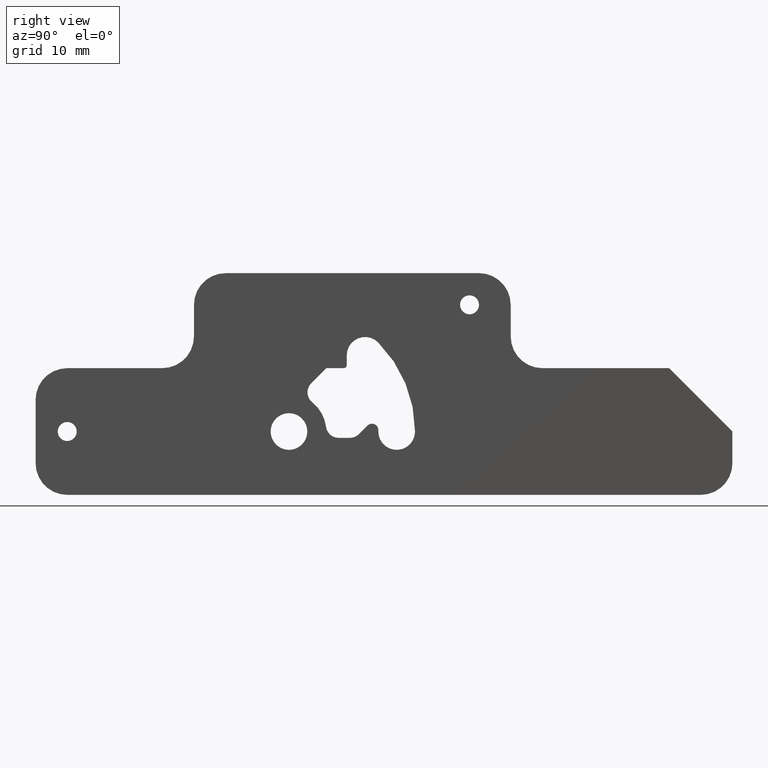
[diagram: clean part render]
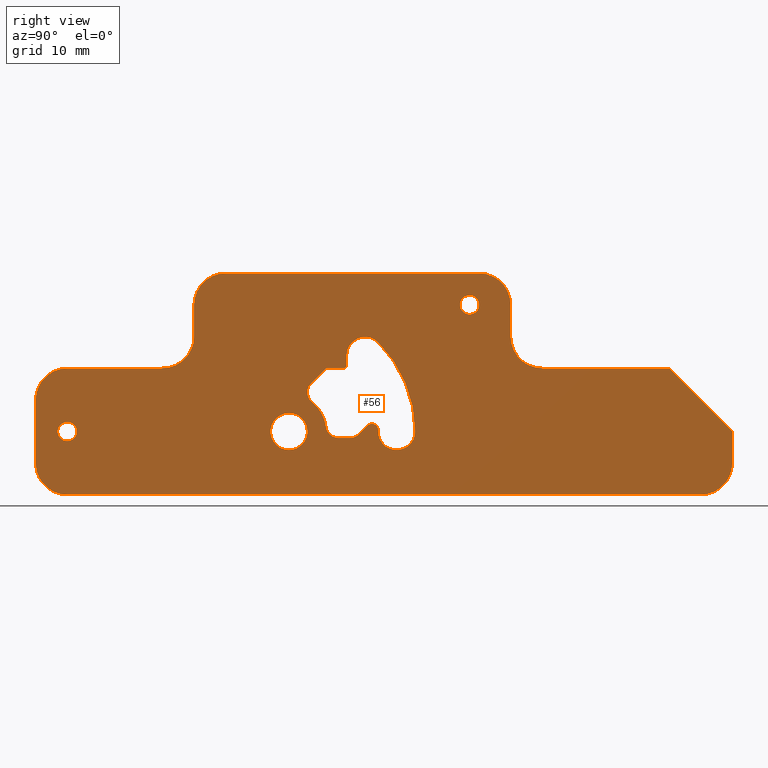
[diagram: same view with one face highlighted and labeled with its STEP entity id]
A machine part, right view. The second image highlights one B-rep face of the part: STEP entity #56.
In plain terms, the highlighted planar face has unit normal (1, 0, 0).
Its self-contained STEP definition (entity closure, byte-faithful):
#56=ADVANCED_FACE('',(#239,#240,#241,#242,#243),#238,.T.);
#238=PLANE('',#549);
#239=FACE_OUTER_BOUND('',#550,.T.);
#240=FACE_BOUND('',#551,.T.);
#241=FACE_BOUND('',#552,.T.);
#242=FACE_BOUND('',#553,.T.);
#243=FACE_BOUND('',#554,.T.);
#546=CARTESIAN_POINT('',(0.00000000000E+00,-5.00000000000E+01,-1.35000000000E+01));
#547=DIRECTION('',(1.00000000000E+00,0.00000000000E+00,0.00000000000E+00));
#548=DIRECTION('',(0.00000000000E+00,1.00000000000E+00,0.00000000000E+00));
#549=AXIS2_PLACEMENT_3D('',#546,#547,#548);
#550=EDGE_LOOP('',(#728,#729,#730,#731,#732,#733,#734,#735,#736,#737,#738,#739,#740,#741,#742,#743));
#551=EDGE_LOOP('',(#744,#745,#746));
#552=EDGE_LOOP('',(#747,#748,#749,#750,#751,#752,#753,#754,#755,#756,#757,#758,#759,#760));
#553=EDGE_LOOP('',(#761,#762,#763));
#554=EDGE_LOOP('',(#764,#765,#766));
#728=ORIENTED_EDGE('',*,*,#896,.F.);
#729=ORIENTED_EDGE('',*,*,#932,.T.);
#730=ORIENTED_EDGE('',*,*,#929,.F.);
#731=ORIENTED_EDGE('',*,*,#926,.T.);
#732=ORIENTED_EDGE('',*,*,#923,.F.);
#733=ORIENTED_EDGE('',*,*,#920,.T.);
#734=ORIENTED_EDGE('',*,*,#917,.F.);
#735=ORIENTED_EDGE('',*,*,#914,.F.);
#736=ORIENTED_EDGE('',*,*,#911,.F.);
#737=ORIENTED_EDGE('',*,*,#908,.F.);
#738=ORIENTED_EDGE('',*,*,#905,.F.);
#739=ORIENTED_EDGE('',*,*,#890,.T.);
#740=ORIENTED_EDGE('',*,*,#886,.F.);
#741=ORIENTED_EDGE('',*,*,#893,.T.);
#742=ORIENTED_EDGE('',*,*,#903,.F.);
#743=ORIENTED_EDGE('',*,*,#900,.F.);
#744=ORIENTED_EDGE('',*,*,#934,.F.);
#745=ORIENTED_EDGE('',*,*,#935,.F.);
#746=ORIENTED_EDGE('',*,*,#936,.F.);
#747=ORIENTED_EDGE('',*,*,#937,.F.);
#748=ORIENTED_EDGE('',*,*,#938,.F.);
#749=ORIENTED_EDGE('',*,*,#939,.T.);
#750=ORIENTED_EDGE('',*,*,#940,.F.);
#751=ORIENTED_EDGE('',*,*,#941,.F.);
#752=ORIENTED_EDGE('',*,*,#942,.F.);
#753=ORIENTED_EDGE('',*,*,#943,.F.);
#754=ORIENTED_EDGE('',*,*,#944,.T.);
#755=ORIENTED_EDGE('',*,*,#945,.F.);
#756=ORIENTED_EDGE('',*,*,#946,.F.);
#757=ORIENTED_EDGE('',*,*,#947,.F.);
#758=ORIENTED_EDGE('',*,*,#948,.T.);
#759=ORIENTED_EDGE('',*,*,#949,.F.);
#760=ORIENTED_EDGE('',*,*,#950,.F.);
#761=ORIENTED_EDGE('',*,*,#951,.F.);
#762=ORIENTED_EDGE('',*,*,#952,.F.);
#763=ORIENTED_EDGE('',*,*,#953,.F.);
#764=ORIENTED_EDGE('',*,*,#954,.F.);
#765=ORIENTED_EDGE('',*,*,#955,.F.);
#766=ORIENTED_EDGE('',*,*,#956,.F.);
#886=EDGE_CURVE('',#997,#998,#999,.T.);
#890=EDGE_CURVE('',#1025,#998,#1026,.T.);
#893=EDGE_CURVE('',#997,#1045,#1046,.T.);
#896=EDGE_CURVE('',#1065,#1066,#1067,.T.);
#900=EDGE_CURVE('',#1066,#1093,#1094,.T.);
#903=EDGE_CURVE('',#1093,#1045,#1113,.T.);
#905=EDGE_CURVE('',#1025,#1125,#1126,.T.);
#908=EDGE_CURVE('',#1125,#1145,#1146,.T.);
#911=EDGE_CURVE('',#1145,#1165,#1166,.T.);
#914=EDGE_CURVE('',#1165,#1185,#1186,.T.);
#917=EDGE_CURVE('',#1185,#1205,#1206,.T.);
#920=EDGE_CURVE('',#1225,#1205,#1226,.T.);
#923=EDGE_CURVE('',#1225,#1245,#1246,.T.);
#926=EDGE_CURVE('',#1265,#1245,#1266,.T.);
#929=EDGE_CURVE('',#1265,#1285,#1286,.T.);
#932=EDGE_CURVE('',#1065,#1285,#1305,.T.);
#934=EDGE_CURVE('',#1317,#1318,#1319,.T.);
#935=EDGE_CURVE('',#1325,#1317,#1326,.T.);
#936=EDGE_CURVE('',#1318,#1325,#1332,.T.);
#937=EDGE_CURVE('',#1338,#1339,#1340,.T.);
#938=EDGE_CURVE('',#1346,#1338,#1347,.T.);
#939=EDGE_CURVE('',#1346,#1353,#1354,.T.);
#940=EDGE_CURVE('',#1360,#1353,#1361,.T.);
#941=EDGE_CURVE('',#1367,#1360,#1368,.T.);
#942=EDGE_CURVE('',#1374,#1367,#1375,.T.);
#943=EDGE_CURVE('',#1381,#1374,#1382,.T.);
#944=EDGE_CURVE('',#1381,#1388,#1389,.T.);
#945=EDGE_CURVE('',#1395,#1388,#1396,.T.);
#946=EDGE_CURVE('',#1402,#1395,#1403,.T.);
#947=EDGE_CURVE('',#1409,#1402,#1410,.T.);
#948=EDGE_CURVE('',#1409,#1416,#1417,.T.);
#949=EDGE_CURVE('',#1423,#1416,#1424,.T.);
#950=EDGE_CURVE('',#1339,#1423,#1430,.T.);
#951=EDGE_CURVE('',#1436,#1437,#1438,.T.);
#952=EDGE_CURVE('',#1444,#1436,#1445,.T.);
#953=EDGE_CURVE('',#1437,#1444,#1451,.T.);
#954=EDGE_CURVE('',#1457,#1458,#1459,.T.);
#955=EDGE_CURVE('',#1465,#1457,#1466,.T.);
#956=EDGE_CURVE('',#1458,#1465,#1472,.T.);
#997=VERTEX_POINT('',#1738);
#998=VERTEX_POINT('',#1739);
#999=LINE('',#1740,#1741);
#1025=VERTEX_POINT('',#1754);
#1026=CIRCLE('',#1758,5.00000000000E+00);
#1045=VERTEX_POINT('',#1767);
#1046=CIRCLE('',#1771,5.00000000000E+00);
#1065=VERTEX_POINT('',#1780);
#1066=VERTEX_POINT('',#1781);
#1067=LINE('',#1782,#1783);
#1093=VERTEX_POINT('',#1796);
#1094=CIRCLE('',#1800,5.00000000000E+00);
#1113=LINE('',#1809,#1810);
#1125=VERTEX_POINT('',#1815);
#1126=LINE('',#1816,#1817);
#1145=VERTEX_POINT('',#1826);
#1146=CIRCLE('',#1830,5.00000000000E+00);
#1165=VERTEX_POINT('',#1839);
#1166=LINE('',#1840,#1841);
#1185=VERTEX_POINT('',#1850);
#1186=LINE('',#1851,#1852);
#1205=VERTEX_POINT('',#1861);
#1206=LINE('',#1862,#1863);
#1225=VERTEX_POINT('',#1872);
#1226=CIRCLE('',#1876,5.00000000000E+00);
#1245=VERTEX_POINT('',#1885);
#1246=LINE('',#1886,#1887);
#1265=VERTEX_POINT('',#1896);
#1266=CIRCLE('',#1900,5.00000000000E+00);
#1285=VERTEX_POINT('',#1909);
#1286=LINE('',#1910,#1911);
#1305=CIRCLE('',#1923,5.00000000000E+00);
#1317=VERTEX_POINT('',#1928);
#1318=VERTEX_POINT('',#1929);
#1319=CIRCLE('',#1933,1.50000000000E+00);
#1325=VERTEX_POINT('',#1934);
#1326=CIRCLE('',#1938,1.50000000000E+00);
#1332=CIRCLE('',#1942,1.50000000000E+00);
#1338=VERTEX_POINT('',#1943);
#1339=VERTEX_POINT('',#1944);
#1340=CIRCLE('',#1948,1.99000000000E+01);
#1346=VERTEX_POINT('',#1949);
#1347=CIRCLE('',#1953,2.90000000000E+00);
#1353=VERTEX_POINT('',#1954);
#1354=CIRCLE('',#1958,1.00000000000E+00);
#1360=VERTEX_POINT('',#1959);
#1361=LINE('',#1960,#1961);
#1367=VERTEX_POINT('',#1963);
#1368=CIRCLE('',#1967,2.00000000000E+00);
#1374=VERTEX_POINT('',#1968);
#1375=LINE('',#1969,#1970);
#1381=VERTEX_POINT('',#1972);
#1382=CIRCLE('',#1976,2.00000000000E+00);
#1388=VERTEX_POINT('',#1977);
#1389=CIRCLE('',#1981,5.90000000000E+00);
#1395=VERTEX_POINT('',#1982);
#1396=CIRCLE('',#1986,2.00000000000E+00);
#1402=VERTEX_POINT('',#1987);
#1403=LINE('',#1988,#1989);
#1409=VERTEX_POINT('',#1991);
#1410=LINE('',#1992,#1993);
#1416=VERTEX_POINT('',#1995);
#1417=CIRCLE('',#1999,5.00000000000E-01);
#1423=VERTEX_POINT('',#2000);
#1424=LINE('',#2001,#2002);
#1430=CIRCLE('',#2007,2.90000000000E+00);
#1436=VERTEX_POINT('',#2008);
#1437=VERTEX_POINT('',#2009);
#1438=CIRCLE('',#2013,2.90000000000E+00);
#1444=VERTEX_POINT('',#2014);
#1445=CIRCLE('',#2018,2.90000000000E+00);
#1451=CIRCLE('',#2022,2.90000000000E+00);
#1457=VERTEX_POINT('',#2023);
#1458=VERTEX_POINT('',#2024);
#1459=CIRCLE('',#2028,1.50000000000E+00);
#1465=VERTEX_POINT('',#2029);
#1466=CIRCLE('',#2033,1.50000000000E+00);
#1472=CIRCLE('',#2037,1.50000000000E+00);
#1738=CARTESIAN_POINT('',(0.00000000000E+00,-1.00000000000E+01,2.50000000000E+01));
#1739=CARTESIAN_POINT('',(0.00000000000E+00,3.00000000000E+01,2.50000000000E+01));
#1740=CARTESIAN_POINT('',(0.00000000000E+00,-1.00000000000E+01,2.50000000000E+01));
#1741=VECTOR('',#1742,4.00000000000E+01);
#1742=DIRECTION('',(0.00000000000E+00,1.00000000000E+00,0.00000000000E+00));
#1754=CARTESIAN_POINT('',(0.00000000000E+00,3.50000000000E+01,2.00000000000E+01));
#1755=CARTESIAN_POINT('',(0.00000000000E+00,3.00000000000E+01,2.00000000000E+01));
#1756=DIRECTION('',(1.00000000000E+00,-0.00000000000E+00,0.00000000000E+00));
#1757=DIRECTION('',(-0.00000000000E+00,-1.00000000000E+00,-0.00000000000E+00));
#1758=AXIS2_PLACEMENT_3D('',#1755,#1756,#1757);
#1767=CARTESIAN_POINT('',(0.00000000000E+00,-1.50000000000E+01,2.00000000000E+01));
#1768=CARTESIAN_POINT('',(0.00000000000E+00,-1.00000000000E+01,2.00000000000E+01));
#1769=DIRECTION('',(1.00000000000E+00,-0.00000000000E+00,0.00000000000E+00));
#1770=DIRECTION('',(-0.00000000000E+00,-1.00000000000E+00,-0.00000000000E+00));
#1771=AXIS2_PLACEMENT_3D('',#1768,#1769,#1770);
#1780=CARTESIAN_POINT('',(0.00000000000E+00,-3.50000000000E+01,1.00000000000E+01));
#1781=CARTESIAN_POINT('',(0.00000000000E+00,-2.00000000000E+01,1.00000000000E+01));
#1782=CARTESIAN_POINT('',(0.00000000000E+00,-3.50000000000E+01,1.00000000000E+01));
#1783=VECTOR('',#1784,1.50000000000E+01);
#1784=DIRECTION('',(0.00000000000E+00,1.00000000000E+00,0.00000000000E+00));
#1796=CARTESIAN_POINT('',(0.00000000000E+00,-1.50000000000E+01,1.50000000000E+01));
#1797=CARTESIAN_POINT('',(0.00000000000E+00,-2.00000000000E+01,1.50000000000E+01));
#1798=DIRECTION('',(1.00000000000E+00,-0.00000000000E+00,0.00000000000E+00));
#1799=DIRECTION('',(-0.00000000000E+00,-1.00000000000E+00,-0.00000000000E+00));
#1800=AXIS2_PLACEMENT_3D('',#1797,#1798,#1799);
#1809=CARTESIAN_POINT('',(0.00000000000E+00,-1.50000000000E+01,1.50000000000E+01));
#1810=VECTOR('',#1811,5.00000000000E+00);
#1811=DIRECTION('',(0.00000000000E+00,0.00000000000E+00,1.00000000000E+00));
#1815=CARTESIAN_POINT('',(0.00000000000E+00,3.50000000000E+01,1.50000000000E+01));
#1816=CARTESIAN_POINT('',(0.00000000000E+00,3.50000000000E+01,2.00000000000E+01));
#1817=VECTOR('',#1818,5.00000000000E+00);
#1818=DIRECTION('',(0.00000000000E+00,0.00000000000E+00,-1.00000000000E+00));
#1826=CARTESIAN_POINT('',(0.00000000000E+00,4.00000000000E+01,1.00000000000E+01));
#1827=CARTESIAN_POINT('',(0.00000000000E+00,4.00000000000E+01,1.50000000000E+01));
#1828=DIRECTION('',(1.00000000000E+00,-0.00000000000E+00,0.00000000000E+00));
#1829=DIRECTION('',(-0.00000000000E+00,-1.00000000000E+00,-0.00000000000E+00));
#1830=AXIS2_PLACEMENT_3D('',#1827,#1828,#1829);
#1839=CARTESIAN_POINT('',(0.00000000000E+00,6.00000000000E+01,1.00000000000E+01));
#1840=CARTESIAN_POINT('',(0.00000000000E+00,4.00000000000E+01,1.00000000000E+01));
#1841=VECTOR('',#1842,2.00000000000E+01);
#1842=DIRECTION('',(0.00000000000E+00,1.00000000000E+00,0.00000000000E+00));
#1850=CARTESIAN_POINT('',(0.00000000000E+00,7.00000000000E+01,0.00000000000E+00));
#1851=CARTESIAN_POINT('',(0.00000000000E+00,6.00000000000E+01,1.00000000000E+01));
#1852=VECTOR('',#1853,1.41421356237E+01);
#1853=DIRECTION('',(0.00000000000E+00,7.07106781187E-01,-7.07106781187E-01));
#1861=CARTESIAN_POINT('',(0.00000000000E+00,7.00000000000E+01,-5.00000000000E+00));
#1862=CARTESIAN_POINT('',(0.00000000000E+00,7.00000000000E+01,0.00000000000E+00));
#1863=VECTOR('',#1864,5.00000000000E+00);
#1864=DIRECTION('',(0.00000000000E+00,0.00000000000E+00,-1.00000000000E+00));
#1872=CARTESIAN_POINT('',(0.00000000000E+00,6.50000000000E+01,-1.00000000000E+01));
#1873=CARTESIAN_POINT('',(0.00000000000E+00,6.50000000000E+01,-5.00000000000E+00));
#1874=DIRECTION('',(1.00000000000E+00,-0.00000000000E+00,0.00000000000E+00));
#1875=DIRECTION('',(-0.00000000000E+00,-1.00000000000E+00,-0.00000000000E+00));
#1876=AXIS2_PLACEMENT_3D('',#1873,#1874,#1875);
#1885=CARTESIAN_POINT('',(0.00000000000E+00,-3.50000000000E+01,-1.00000000000E+01));
#1886=CARTESIAN_POINT('',(0.00000000000E+00,6.50000000000E+01,-1.00000000000E+01));
#1887=VECTOR('',#1888,1.00000000000E+02);
#1888=DIRECTION('',(0.00000000000E+00,-1.00000000000E+00,0.00000000000E+00));
#1896=CARTESIAN_POINT('',(0.00000000000E+00,-4.00000000000E+01,-5.00000000000E+00));
#1897=CARTESIAN_POINT('',(0.00000000000E+00,-3.50000000000E+01,-5.00000000000E+00));
#1898=DIRECTION('',(1.00000000000E+00,-0.00000000000E+00,0.00000000000E+00));
#1899=DIRECTION('',(-0.00000000000E+00,-1.00000000000E+00,-0.00000000000E+00));
#1900=AXIS2_PLACEMENT_3D('',#1897,#1898,#1899);
#1909=CARTESIAN_POINT('',(0.00000000000E+00,-4.00000000000E+01,5.00000000000E+00));
#1910=CARTESIAN_POINT('',(0.00000000000E+00,-4.00000000000E+01,-5.00000000000E+00));
#1911=VECTOR('',#1912,1.00000000000E+01);
#1912=DIRECTION('',(0.00000000000E+00,0.00000000000E+00,1.00000000000E+00));
#1920=CARTESIAN_POINT('',(0.00000000000E+00,-3.50000000000E+01,5.00000000000E+00));
#1921=DIRECTION('',(1.00000000000E+00,-0.00000000000E+00,0.00000000000E+00));
#1922=DIRECTION('',(-0.00000000000E+00,-1.00000000000E+00,-0.00000000000E+00));
#1923=AXIS2_PLACEMENT_3D('',#1920,#1921,#1922);
#1928=CARTESIAN_POINT('',(0.00000000000E+00,2.84998443029E+01,1.85000000081E+01));
#1929=CARTESIAN_POINT('',(0.00000000000E+00,3.00000000000E+01,2.00000000000E+01));
#1930=CARTESIAN_POINT('',(0.00000000000E+00,2.85000000000E+01,2.00000000000E+01));
#1931=DIRECTION('',(1.00000000000E+00,0.00000000000E+00,0.00000000000E+00));
#1932=DIRECTION('',(0.00000000000E+00,1.00000000000E+00,-1.22460635382E-16));
#1933=AXIS2_PLACEMENT_3D('',#1930,#1931,#1932);
#1934=CARTESIAN_POINT('',(0.00000000000E+00,2.85000081817E+01,2.15000000000E+01));
#1935=CARTESIAN_POINT('',(0.00000000000E+00,2.85000000000E+01,2.00000000000E+01));
#1936=DIRECTION('',(1.00000000000E+00,0.00000000000E+00,0.00000000000E+00));
#1937=DIRECTION('',(0.00000000000E+00,1.00000000000E+00,-1.22460635382E-16));
#1938=AXIS2_PLACEMENT_3D('',#1935,#1936,#1937);
#1939=CARTESIAN_POINT('',(0.00000000000E+00,2.85000000000E+01,2.00000000000E+01));
#1940=DIRECTION('',(1.00000000000E+00,0.00000000000E+00,0.00000000000E+00));
#1941=DIRECTION('',(0.00000000000E+00,1.00000000000E+00,-1.22460635382E-16));
#1942=AXIS2_PLACEMENT_3D('',#1939,#1940,#1941);
#1943=CARTESIAN_POINT('',(0.00000000000E+00,1.99000000000E+01,-7.10295143505E-16));
#1944=CARTESIAN_POINT('',(0.00000000000E+00,1.40714249456E+01,1.40714249456E+01));
#1945=CARTESIAN_POINT('',(0.00000000000E+00,0.00000000000E+00,0.00000000000E+00));
#1946=DIRECTION('',(1.00000000000E+00,-0.00000000000E+00,0.00000000000E+00));
#1947=DIRECTION('',(-0.00000000000E+00,-1.00000000000E+00,-0.00000000000E+00));
#1948=AXIS2_PLACEMENT_3D('',#1945,#1946,#1947);
#1949=CARTESIAN_POINT('',(0.00000000000E+00,1.41054014124E+01,1.76915281389E-01));
#1950=CARTESIAN_POINT('',(0.00000000000E+00,1.70000000000E+01,0.00000000000E+00));
#1951=DIRECTION('',(1.00000000000E+00,0.00000000000E+00,0.00000000000E+00));
#1952=DIRECTION('',(-0.00000000000E+00,-9.98137443993E-01,6.10052694446E-02));
#1953=AXIS2_PLACEMENT_3D('',#1950,#1951,#1952);
#1954=CARTESIAN_POINT('',(0.00000000000E+00,1.24001571872E+01,9.45027332021E-01));
#1955=CARTESIAN_POINT('',(0.00000000000E+00,1.31072639684E+01,2.37920550834E-01));
#1956=DIRECTION('',(1.00000000000E+00,-0.00000000000E+00,0.00000000000E+00));
#1957=DIRECTION('',(-0.00000000000E+00,-1.00000000000E+00,-0.00000000000E+00));
#1958=AXIS2_PLACEMENT_3D('',#1955,#1956,#1957);
#1959=CARTESIAN_POINT('',(0.00000000000E+00,1.10409162928E+01,-4.14213562373E-01));
#1960=CARTESIAN_POINT('',(0.00000000000E+00,1.10409162928E+01,-4.14213562373E-01));
#1961=VECTOR('',#1962,1.92225690738E+00);
#1962=DIRECTION('',(0.00000000000E+00,7.07106781187E-01,7.07106781187E-01));
#1963=CARTESIAN_POINT('',(0.00000000000E+00,9.62670273048E+00,-1.00000000000E+00));
#1964=CARTESIAN_POINT('',(0.00000000000E+00,9.62670273048E+00,1.00000000000E+00));
#1965=DIRECTION('',(1.00000000000E+00,-0.00000000000E+00,0.00000000000E+00));
#1966=DIRECTION('',(-0.00000000000E+00,-1.00000000000E+00,-0.00000000000E+00));
#1967=AXIS2_PLACEMENT_3D('',#1964,#1965,#1966);
#1968=CARTESIAN_POINT('',(0.00000000000E+00,7.83645327939E+00,-1.00000000000E+00));
#1969=CARTESIAN_POINT('',(0.00000000000E+00,7.83645327939E+00,-1.00000000000E+00));
#1970=VECTOR('',#1971,1.79024945109E+00);
#1971=DIRECTION('',(0.00000000000E+00,1.00000000000E+00,0.00000000000E+00));
#1972=CARTESIAN_POINT('',(0.00000000000E+00,5.85254105676E+00,7.46835443038E-01));
#1973=CARTESIAN_POINT('',(0.00000000000E+00,7.83645327939E+00,1.00000000000E+00));
#1974=DIRECTION('',(1.00000000000E+00,-0.00000000000E+00,0.00000000000E+00));
#1975=DIRECTION('',(-0.00000000000E+00,-1.00000000000E+00,-0.00000000000E+00));
#1976=AXIS2_PLACEMENT_3D('',#1973,#1974,#1975);
#1977=CARTESIAN_POINT('',(0.00000000000E+00,3.66948533368E+00,4.62005166485E+00));
#1978=CARTESIAN_POINT('',(0.00000000000E+00,0.00000000000E+00,0.00000000000E+00));
#1979=DIRECTION('',(1.00000000000E+00,-0.00000000000E+00,0.00000000000E+00));
#1980=DIRECTION('',(-0.00000000000E+00,-1.00000000000E+00,-0.00000000000E+00));
#1981=AXIS2_PLACEMENT_3D('',#1978,#1979,#1980);
#1982=CARTESIAN_POINT('',(0.00000000000E+00,3.49916510476E+00,7.60038443565E+00));
#1983=CARTESIAN_POINT('',(0.00000000000E+00,4.91337866714E+00,6.18617087327E+00));
#1984=DIRECTION('',(1.00000000000E+00,0.00000000000E+00,0.00000000000E+00));
#1985=DIRECTION('',(-0.00000000000E+00,-7.07106781187E-01,7.07106781187E-01));
#1986=AXIS2_PLACEMENT_3D('',#1983,#1984,#1985);
#1987=CARTESIAN_POINT('',(0.00000000000E+00,5.89878066912E+00,1.00000000000E+01));
#1988=CARTESIAN_POINT('',(0.00000000000E+00,5.89878066912E+00,1.00000000000E+01));
#1989=VECTOR('',#1990,3.39356887559E+00);
#1990=DIRECTION('',(0.00000000000E+00,-7.07106781187E-01,-7.07106781187E-01));
#1991=CARTESIAN_POINT('',(0.00000000000E+00,8.62081528017E+00,1.00000000000E+01));
#1992=CARTESIAN_POINT('',(0.00000000000E+00,8.62081528017E+00,1.00000000000E+01));
#1993=VECTOR('',#1994,2.72203461105E+00);
#1994=DIRECTION('',(0.00000000000E+00,-1.00000000000E+00,0.00000000000E+00));
#1995=CARTESIAN_POINT('',(0.00000000000E+00,9.12081528017E+00,1.05000000000E+01));
#1996=CARTESIAN_POINT('',(0.00000000000E+00,8.62081528017E+00,1.05000000000E+01));
#1997=DIRECTION('',(1.00000000000E+00,-0.00000000000E+00,0.00000000000E+00));
#1998=DIRECTION('',(-0.00000000000E+00,-1.00000000000E+00,-0.00000000000E+00));
#1999=AXIS2_PLACEMENT_3D('',#1996,#1997,#1998);
#2000=CARTESIAN_POINT('',(0.00000000000E+00,9.12081528017E+00,1.20208152802E+01));
#2001=CARTESIAN_POINT('',(0.00000000000E+00,9.12081528017E+00,1.20208152802E+01));
#2002=VECTOR('',#2003,1.52081528017E+00);
#2003=DIRECTION('',(0.00000000000E+00,-2.24261629674E-13,-1.00000000000E+00));
#2004=CARTESIAN_POINT('',(0.00000000000E+00,1.20208152802E+01,1.20208152802E+01));
#2005=DIRECTION('',(1.00000000000E+00,-0.00000000000E+00,0.00000000000E+00));
#2006=DIRECTION('',(-0.00000000000E+00,-1.00000000000E+00,-0.00000000000E+00));
#2007=AXIS2_PLACEMENT_3D('',#2004,#2005,#2006);
#2008=CARTESIAN_POINT('',(0.00000000000E+00,-3.00964188611E-04,-2.89999998438E+00));
#2009=CARTESIAN_POINT('',(0.00000000000E+00,2.90000000000E+00,0.00000000000E+00));
#2010=CARTESIAN_POINT('',(0.00000000000E+00,0.00000000000E+00,0.00000000000E+00));
#2011=DIRECTION('',(1.00000000000E+00,0.00000000000E+00,0.00000000000E+00));
#2012=DIRECTION('',(0.00000000000E+00,1.00000000000E+00,-1.22460635382E-16));
#2013=AXIS2_PLACEMENT_3D('',#2010,#2011,#2012);
#2014=CARTESIAN_POINT('',(0.00000000000E+00,1.15591435771E-11,2.90000000000E+00));
#2015=CARTESIAN_POINT('',(0.00000000000E+00,0.00000000000E+00,0.00000000000E+00));
#2016=DIRECTION('',(1.00000000000E+00,0.00000000000E+00,0.00000000000E+00));
#2017=DIRECTION('',(0.00000000000E+00,1.00000000000E+00,-1.22460635382E-16));
#2018=AXIS2_PLACEMENT_3D('',#2015,#2016,#2017);
#2019=CARTESIAN_POINT('',(0.00000000000E+00,0.00000000000E+00,0.00000000000E+00));
#2020=DIRECTION('',(1.00000000000E+00,0.00000000000E+00,0.00000000000E+00));
#2021=DIRECTION('',(0.00000000000E+00,1.00000000000E+00,-1.22460635382E-16));
#2022=AXIS2_PLACEMENT_3D('',#2019,#2020,#2021);
#2023=CARTESIAN_POINT('',(0.00000000000E+00,-3.50001556971E+01,-1.49999999192E+00));
#2024=CARTESIAN_POINT('',(0.00000000000E+00,-3.35000000000E+01,0.00000000000E+00));
#2025=CARTESIAN_POINT('',(0.00000000000E+00,-3.50000000000E+01,0.00000000000E+00));
#2026=DIRECTION('',(1.00000000000E+00,0.00000000000E+00,0.00000000000E+00));
#2027=DIRECTION('',(0.00000000000E+00,1.00000000000E+00,-1.22460635382E-16));
#2028=AXIS2_PLACEMENT_3D('',#2025,#2026,#2027);
#2029=CARTESIAN_POINT('',(0.00000000000E+00,-3.49999918183E+01,1.49999999998E+00));
#2030=CARTESIAN_POINT('',(0.00000000000E+00,-3.50000000000E+01,0.00000000000E+00));
#2031=DIRECTION('',(1.00000000000E+00,0.00000000000E+00,0.00000000000E+00));
#2032=DIRECTION('',(0.00000000000E+00,1.00000000000E+00,-1.22460635382E-16));
#2033=AXIS2_PLACEMENT_3D('',#2030,#2031,#2032);
#2034=CARTESIAN_POINT('',(0.00000000000E+00,-3.50000000000E+01,0.00000000000E+00));
#2035=DIRECTION('',(1.00000000000E+00,0.00000000000E+00,0.00000000000E+00));
#2036=DIRECTION('',(0.00000000000E+00,1.00000000000E+00,-1.22460635382E-16));
#2037=AXIS2_PLACEMENT_3D('',#2034,#2035,#2036);